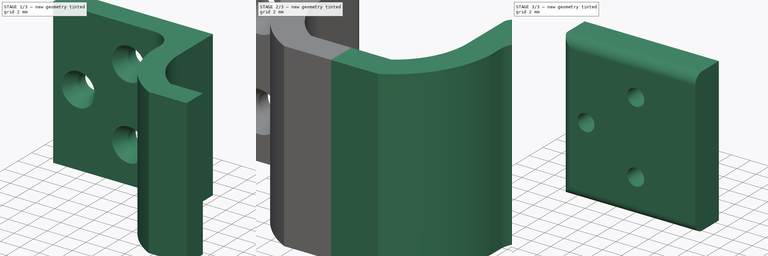
[diagram: build sequence overview — one tinted view per stage of 3, left to right]
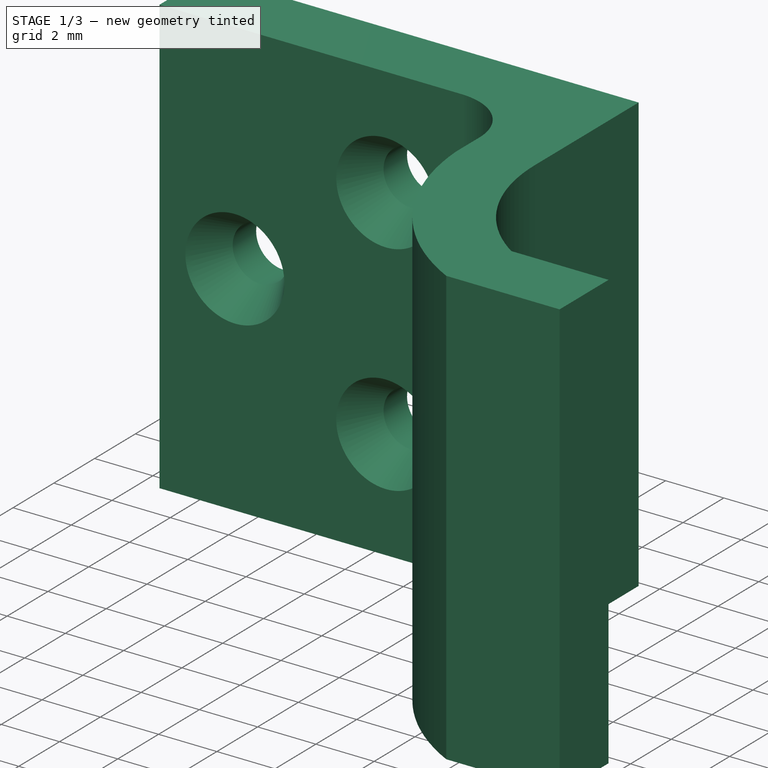
[diagram: stage 1 of 3 — iso view after this stage's code; geometry added in this stage tinted green]
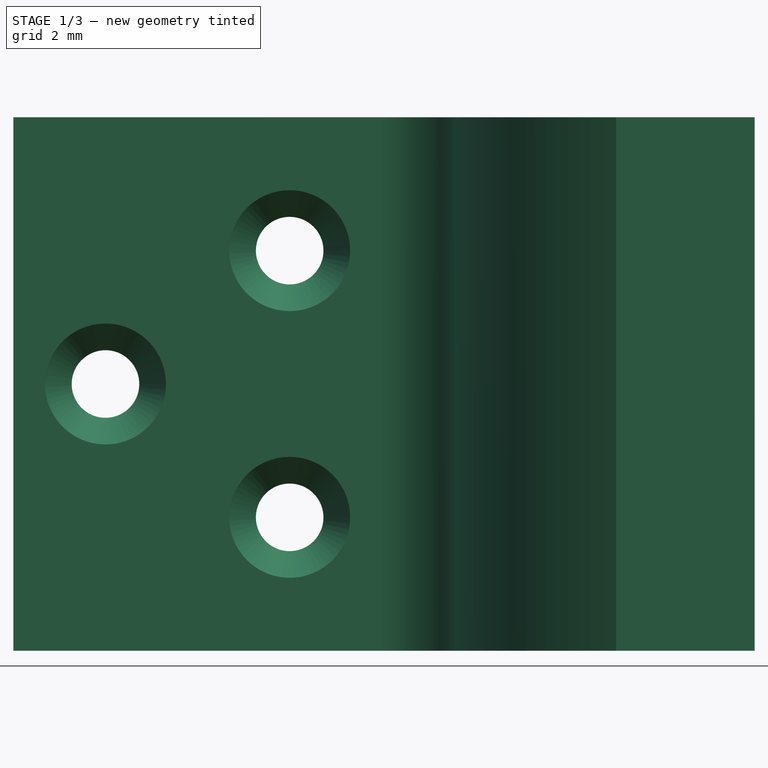
[diagram: stage 1 of 3 — front view after this stage's code; geometry added in this stage tinted green]
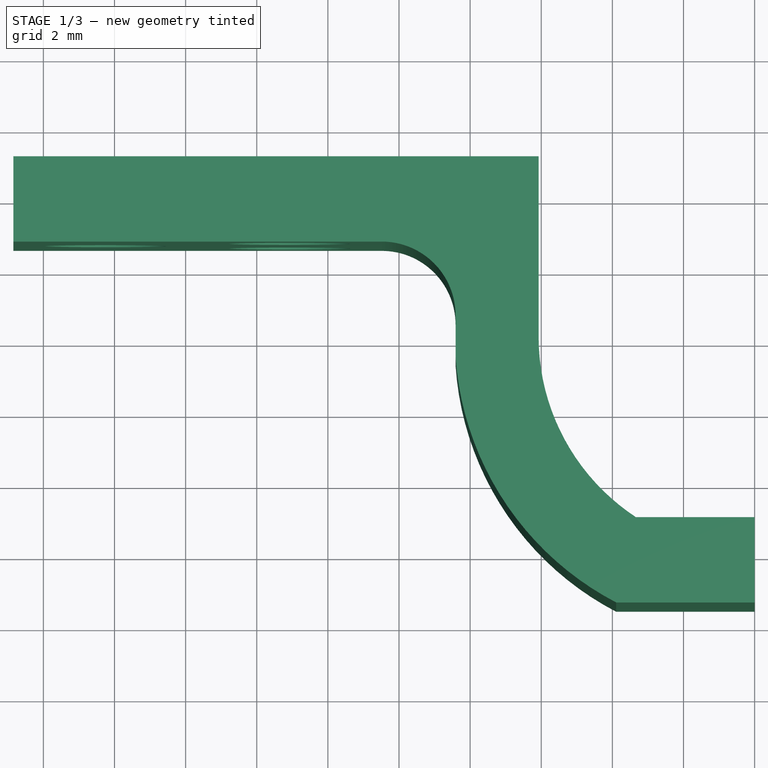
[diagram: stage 1 of 3 — top view after this stage's code; geometry added in this stage tinted green]
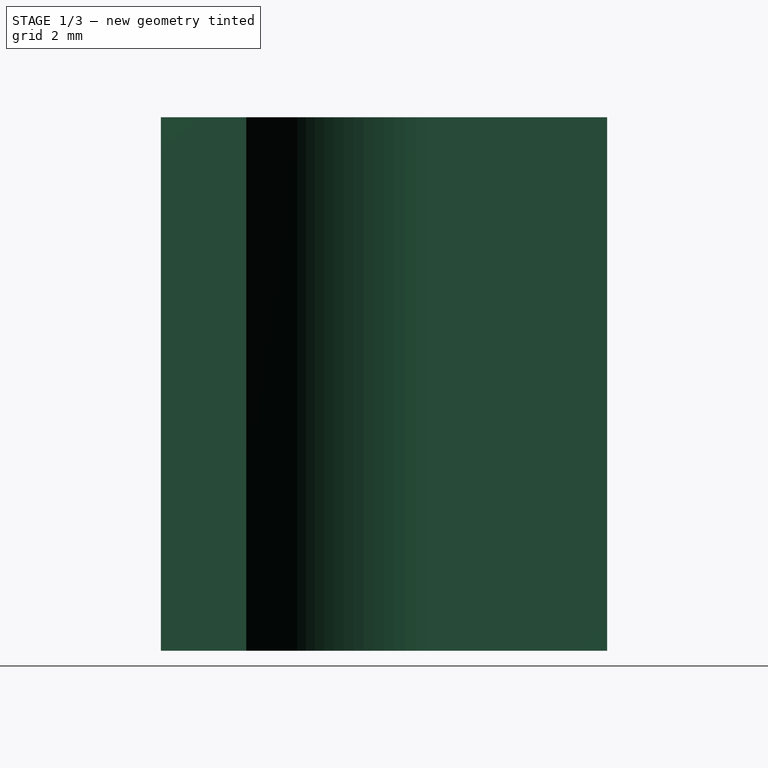
[diagram: stage 1 of 3 — right view after this stage's code; geometry added in this stage tinted green]
FCSTD DOCUMENT  (FreeCAD 1.0R39319 (Git))
Label: paolo_n20_bracket01
License: All rights reserved
LicenseURL: http://en.wikipedia.org/wiki/All_rights_reserved
objects: Sketcher::SketchObject×4, PartDesign::Pad×3, PartDesign::Body×3, PartDesign::Fillet×2, PartDesign::SubShapeBinder×2, PartDesign::Pocket×1, PartDesign::Chamfer×1, PartDesign::Mirrored×1, App::Part×1
note: 36 computed .brp shape members not serialized (recipe doc carries the construction recipe); baked Part::Feature solids carry a one-line shape summary decoded from their .brp

FEATURE [Sketcher::SketchObject] Sketch
  ArcFitTolerance = 1e-06
  AttachmentSupport = -> [XY_Plane001]
  FullyConstrained = false
  MakeInternals = false
  MapMode = 5
  sketch-geometry (19):
    g0: Circle [constr] CenterX=1.51607e-11 CenterY=-7.2447e-12 CenterZ=0 NormalX=0 NormalY=0 NormalZ=1 AngleXU=0 Radius=6.075
    g1: LineSegment [constr] StartX=-21.4264 StartY=5.075 StartZ=0 EndX=21.1454 EndY=5.075 EndZ=0
    g2: LineSegment [constr] StartX=-14.0475 StartY=-5.075 StartZ=0 EndX=21.1454 EndY=-5.075 EndZ=0
    g3: LineSegment StartX=-6.075 StartY=5.075 StartZ=0 EndX=-6.075 EndY=5.69509e-11 EndZ=0
    g4: LineSegment StartX=-6.075 StartY=5.075 StartZ=0 EndX=-20.8443 EndY=5.075 EndZ=0
    g5: ArcOfCircle CenterX=1.51607e-11 CenterY=-7.2447e-12 CenterZ=0 NormalX=0 NormalY=0 NormalZ=1 AngleXU=0 Radius=6.075 StartAngle=3.14159 EndAngle=4.13044
    g6: LineSegment StartX=-20.8443 StartY=2.675 StartZ=0 EndX=-10.4851 EndY=2.675 EndZ=0
    g7: LineSegment StartX=-8.40938 StartY=0.599322 StartZ=0 EndX=-8.40938 EndY=-0.557373 EndZ=0
    g8: LineSegment StartX=-3.89265 StartY=-7.475 StartZ=0 EndX=0 EndY=-7.475 EndZ=0
    g9: LineSegment StartX=-3.33916 StartY=-5.075 StartZ=0 EndX=0 EndY=-5.075 EndZ=0
    g10: LineSegment StartX=0 StartY=-5.075 StartZ=0 EndX=0 EndY=-7.475 EndZ=0
    g11: LineSegment [constr] StartX=-14.0475 StartY=-5.075 StartZ=0 EndX=-14.0475 EndY=-7.475 EndZ=0
    g12: LineSegment [constr] StartX=-21.4264 StartY=5.075 StartZ=0 EndX=-21.4264 EndY=2.675 EndZ=0
    g13: LineSegment [constr] StartX=-8.40938 StartY=7.05861 StartZ=0 EndX=-6.075 EndY=7.05861 EndZ=0
    g14: LineSegment StartX=-20.8443 StartY=5.075 StartZ=0 EndX=-20.8443 EndY=2.675 EndZ=0
    g15: ArcOfCircle CenterX=1.51607e-11 CenterY=-7.2447e-12 CenterZ=0 NormalX=0 NormalY=0 NormalZ=1 AngleXU=0 Radius=8.42783 StartAngle=3.20778 EndAngle=4.23227
    g16: ArcOfCircle CenterX=-10.4851 CenterY=0.599322 CenterZ=0 NormalX=0 NormalY=0 NormalZ=1 AngleXU=0 Radius=2.07568 StartAngle=3.3011e-12 EndAngle=1.5708
    g17: GeomPoint [constr] X=-8.40938 Y=2.675 Z=0
    g18: LineSegment [constr] StartX=-8.40938 StartY=-0.557373 StartZ=0 EndX=-6.075 EndY=5.69512e-11 EndZ=0
  constraints (47):
    c: Coincident(g0,g-1)
    c: Diameter(g0) = 12.15
    c: Horizontal(g1)
    c: Horizontal(g2)
    c: Symmetric(g1,g2,g-1)
    c: DistanceY(g2,g1) = 10.15
    c: PointOnObject(g3,g1)
    c: Tangent(g3,g0) = -1.5708
    c: Vertical(g3)
    c: Coincident(g4,g3)
    c: PointOnObject(g4,g1)
    c: Coincident(g5,g0)
    c: Coincident(g5,g3)
    c: PointOnObject(g5,g2)
    c: Horizontal(g6)
    c: Vertical(g7)
    c: Horizontal(g8)
    c: Coincident(g9,g5)
    c: PointOnObject(g9,g2)
    c: PointOnObject(g9,g-2)
    c: Coincident(g10,g9)
    c: Coincident(g10,g8)
    c: PointOnObject(g8,g-2)
    c: Coincident(g11,g2)
    c: Vertical(g11)
    c: Horizontal(g11,g8)
    c: Coincident(g12,g1)
    c: Vertical(g12)
    c: Horizontal(g12,g6)
    c: Equal(g12,g11)
    c: Horizontal(g13)
    c: Vertical(g3,g13)
    c: Vertical(g13,g7)
    c: Coincident(g14,g4)
    c: Coincident(g14,g6)
    c: Vertical(g14)
    c: Coincident(g15,g0)
    c: Coincident(g15,g7)
    c: Coincident(g15,g8)
    c: DistanceY(g12,g12) = 2.4
    c: PointOnObject(g17,g6)
    c: PointOnObject(g17,g7)
    c: Tangent(g6,g16) = 1.5708
    c: Tangent(g7,g16) = 1.5708
    c: Coincident(g18,g7)
    c: Coincident(g18,g3)
    c: Equal(g18,g11)
FEATURE [PartDesign::Pad] Pad
  Direction = (0,0,1)
  Length = 15
  Length2 = 10
  Midplane = true
  Profile = -> Sketch
  ReferenceAxis = -> Sketch [N_Axis]
  Suppressed = false
  Type = 0
FEATURE [Sketcher::SketchObject] Sketch001
  ArcFitTolerance = 1e-06
  AttachmentSupport = -> [Pad]
  ExternalGeometry = -> [Pad]
  FullyConstrained = false
  MakeInternals = false
  MapMode = 5
  Placement = pos=(0,2.675,0) rot=(1,0,0;1.5708rad)
  sketch-geometry (14):
    g0: Circle [constr] CenterX=-13.0749 CenterY=3.75 CenterZ=0 NormalX=0 NormalY=0 NormalZ=1 AngleXU=0 Radius=1.875
    g1: Circle [constr] CenterX=-13.0749 CenterY=-3.75 CenterZ=0 NormalX=0 NormalY=0 NormalZ=1 AngleXU=0 Radius=1.875
    g2: Circle [constr] CenterX=-18.2545 CenterY=0 CenterZ=0 NormalX=0 NormalY=0 NormalZ=1 AngleXU=0 Radius=1.875
    g3: LineSegment [constr] StartX=-24.5186 StartY=7.5 StartZ=0 EndX=-24.5186 EndY=3.75 EndZ=0
    g4: LineSegment [constr] StartX=-24.5186 StartY=3.75 StartZ=0 EndX=-24.5186 EndY=0 EndZ=0
    g5: LineSegment [constr] StartX=-24.5186 StartY=0 StartZ=0 EndX=-24.5186 EndY=-3.75 EndZ=0
    g6: LineSegment [constr] StartX=-24.5186 StartY=-3.75 StartZ=0 EndX=-24.5186 EndY=-7.5 EndZ=0
    g7: LineSegment [constr] StartX=-20.8443 StartY=10.0965 StartZ=0 EndX=-18.2545 EndY=10.0965 EndZ=0
    g8: LineSegment [constr] StartX=-18.2545 StartY=10.0965 StartZ=0 EndX=-15.6647 EndY=10.0965 EndZ=0
    g9: LineSegment [constr] StartX=-15.6647 StartY=10.0965 StartZ=0 EndX=-13.0749 EndY=10.0965 EndZ=0
    g10: LineSegment [constr] StartX=-13.0749 StartY=10.0965 StartZ=0 EndX=-10.4851 EndY=10.0965 EndZ=0
    g11: Circle CenterX=-13.0749 CenterY=3.75 CenterZ=0 NormalX=0 NormalY=0 NormalZ=1 AngleXU=0 Radius=0.95
    g12: Circle CenterX=-18.2545 CenterY=0 CenterZ=0 NormalX=0 NormalY=0 NormalZ=1 AngleXU=0 Radius=0.95
    g13: Circle CenterX=-13.0749 CenterY=-3.75 CenterZ=0 NormalX=0 NormalY=0 NormalZ=1 AngleXU=0 Radius=0.95
  constraints (42):
    c: Equal(g0,g1)
    c: Symmetric(g0,g1,g-1)
    c: PointOnObject(g2,g-1)
    c: Equal(g1,g2)
    c: Diameter(g0) = 3.75
    c: Vertical(g3)
    c: Coincident(g4,g3)
    c: PointOnObject(g4,g-1)
    c: Vertical(g4)
    c: Coincident(g5,g4)
    c: Vertical(g5)
    c: Coincident(g6,g5)
    c: Vertical(g6)
    c: Horizontal(g3,g-3)
    c: Horizontal(g6,g-4)
    c: Equal(g3,g4)
    c: Equal(g4,g5)
    c: Horizontal(g0,g3)
    c: Horizontal(g7)
    c: Coincident(g8,g7)
    c: Horizontal(g8)
    c: Coincident(g9,g8)
    c: Coincident(g10,g9)
    c: Horizontal(g10)
    c: Horizontal(g9)
    c: Vertical(g10,g-3)
    c: Vertical(g7,g-3)
    c: Equal(g7,g8)
    c: Equal(g8,g9)
    c: Equal(g9,g10)
    c: Vertical(g7,g2)
    c: Vertical(g9,g0)
    c: Coincident(g11,g0)
    c: Coincident(g12,g2)
    c: Coincident(g13,g1)
    c: Equal(g11,g12)
    c: Equal(g12,g13)
    c: Diameter(g13) = 1.9
    c: Distance(g7,g8) = 2.5898
    c: Distance(g8,g9) = 2.5898
    c: Distance(g7,g9) = 5.17961
    c: Distance(g3,g5) = 7.5
FEATURE [PartDesign::Pocket] Pocket
  BaseFeature = -> Pad
  Direction = (0,1,-2e-16)
  Length = 5
  Length2 = 5
  Profile = -> Sketch001
  ReferenceAxis = -> Sketch001 [N_Axis]
  Suppressed = false
  Type = 1
FEATURE [PartDesign::Chamfer] Chamfer
  Angle = 45
  Base = -> Pocket [Edge32,Edge30,Edge34]
  BaseFeature = -> Pocket
  ChamferType = 1
  FlipDirection = false
  Size = 1.25
  Size2 = 0.75
  SupportTransform = false
  Suppressed = false
  UseAllEdges = false
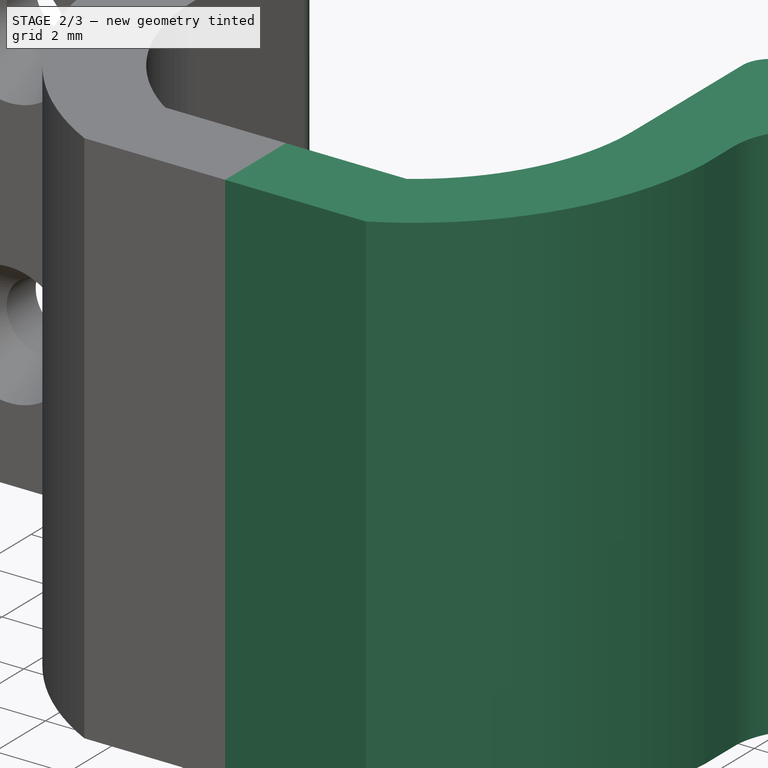
[diagram: stage 2 of 3 — iso view after this stage's code; geometry added in this stage tinted green]
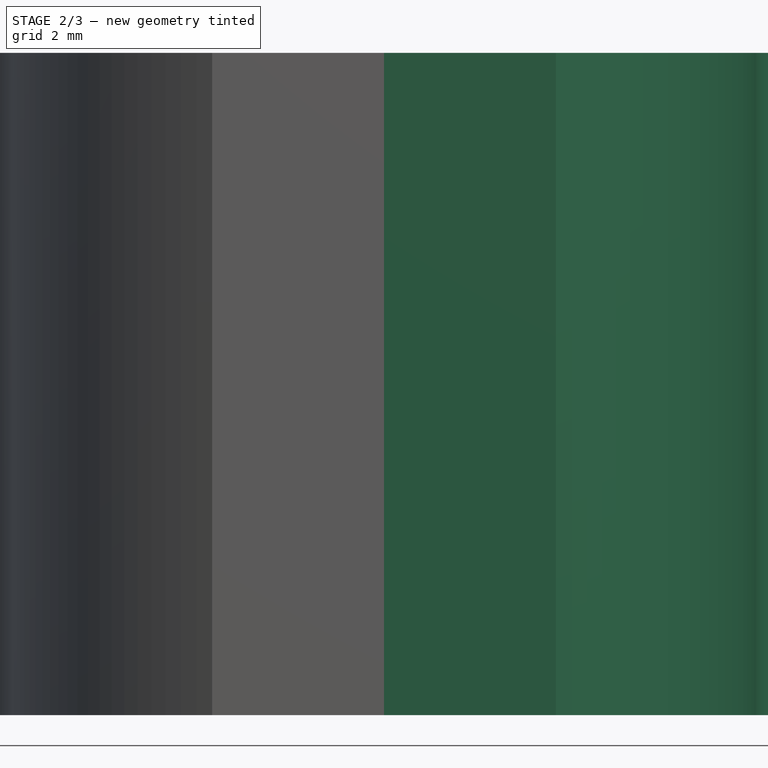
[diagram: stage 2 of 3 — front view after this stage's code; geometry added in this stage tinted green]
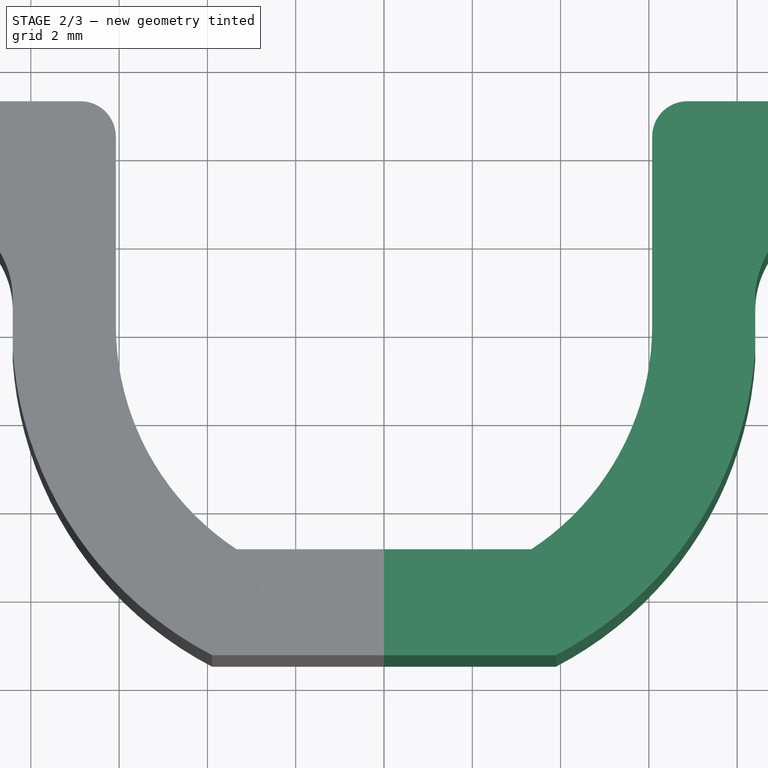
[diagram: stage 2 of 3 — top view after this stage's code; geometry added in this stage tinted green]
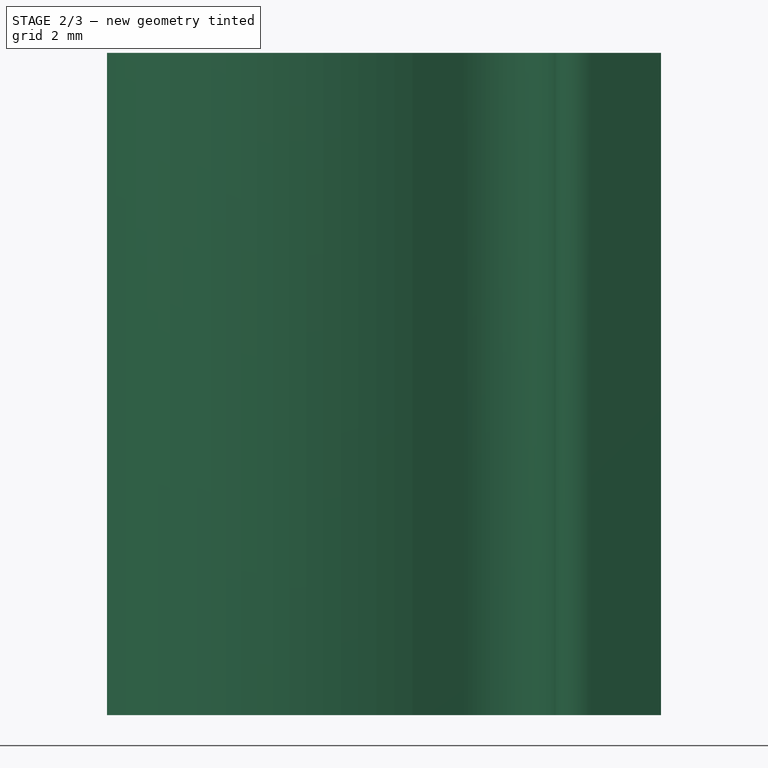
[diagram: stage 2 of 3 — right view after this stage's code; geometry added in this stage tinted green]
FEATURE [PartDesign::Fillet] Fillet
  Base = -> Chamfer [Edge13,Edge6]
  BaseFeature = -> Chamfer
  Radius = 0.8
  SupportTransform = false
  Suppressed = false
  UseAllEdges = false
FEATURE [PartDesign::Mirrored] Mirrored
  BaseFeature = -> Fillet
  MirrorPlane = -> Fillet [Face15]
  Originals = -> [Fillet]
  Suppressed = false
  TransformMode = 1
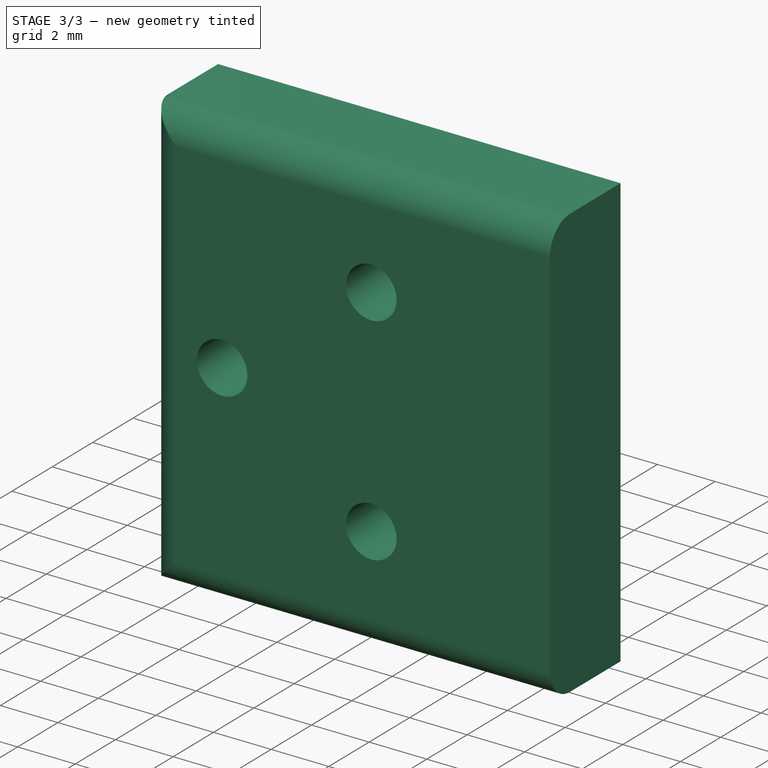
[diagram: stage 3 of 3 — iso view after this stage's code; geometry added in this stage tinted green]
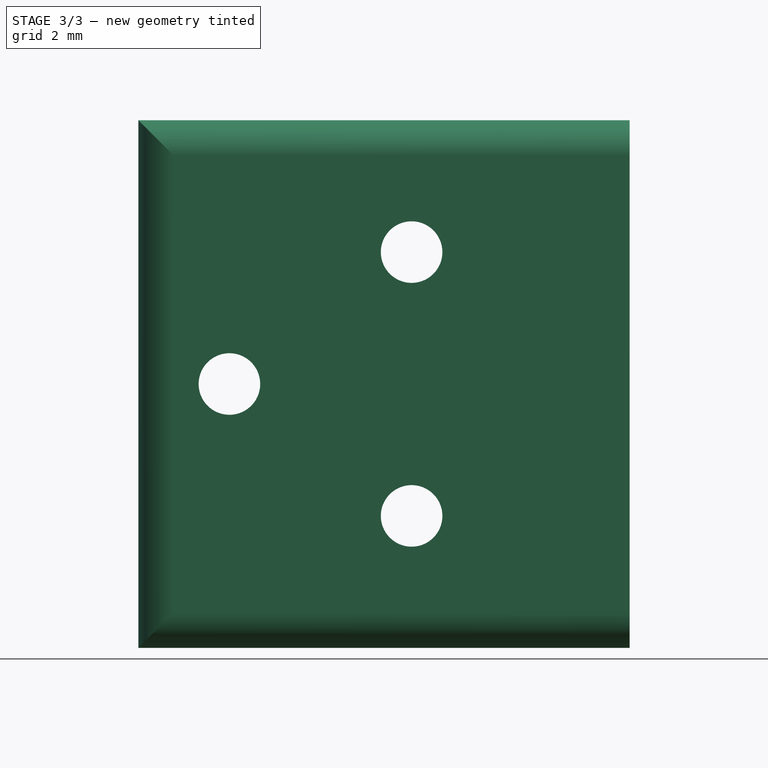
[diagram: stage 3 of 3 — front view after this stage's code; geometry added in this stage tinted green]
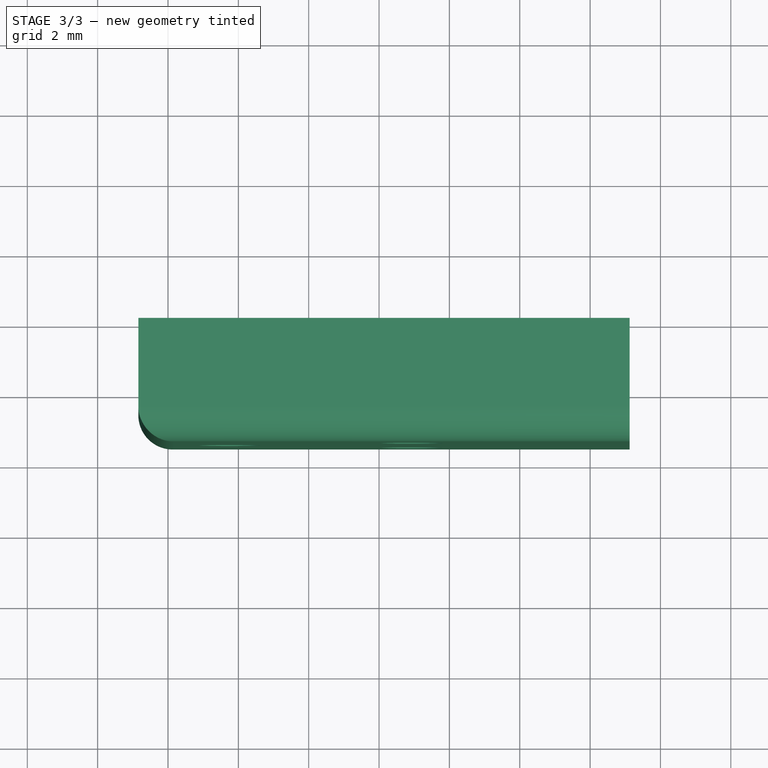
[diagram: stage 3 of 3 — top view after this stage's code; geometry added in this stage tinted green]
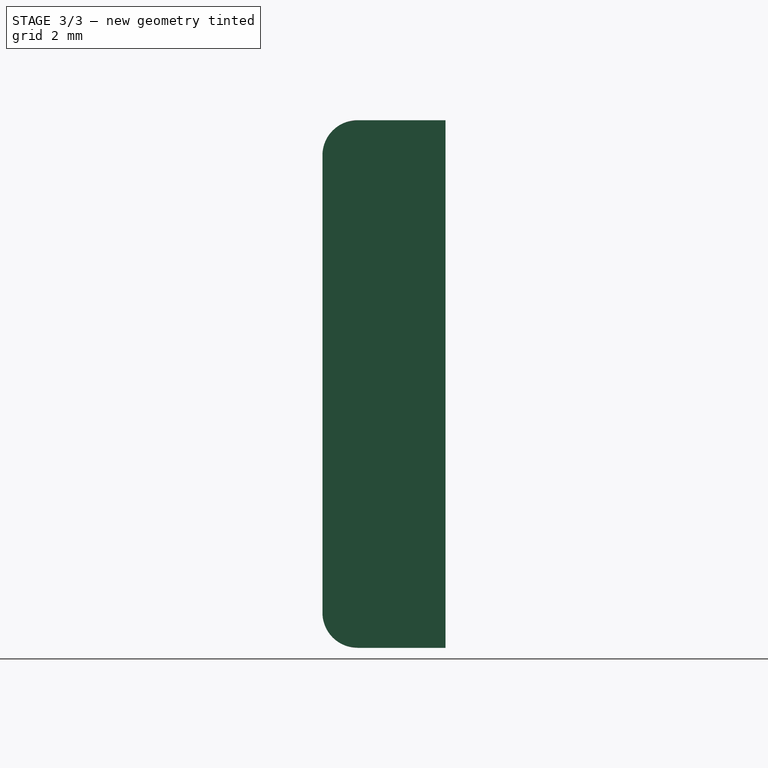
[diagram: stage 3 of 3 — right view after this stage's code; geometry added in this stage tinted green]
FEATURE [PartDesign::Body] Body
  AllowCompound = false
  Group = -> [Sketch,Pad,Sketch001,Pocket,Chamfer,Fillet,Mirrored]
  Origin = -> Origin001
  Tip = -> Mirrored
FEATURE [PartDesign::SubShapeBinder] Binder
  BindCopyOnChange = 0
  BindMode = 0
  ClaimChildren = false
  Context = -> Body001 [Binder.]
  Fuse = false
  MakeFace = true
  OffsetFill = false
  OffsetIntersection = false
  OffsetJoinType = 0
  OffsetOpenResult = false
  PartialLoad = false
  Relative = true
  Support = -> [Part[Body.Mirrored.Face1]]
  _Version = 2
FEATURE [Sketcher::SketchObject] Sketch002  label="fori"
  ArcFitTolerance = 1e-06
  AttachmentSupport = -> [XZ_Plane002]
  ExternalGeometry = -> [Binder]
  FullyConstrained = true
  MakeInternals = false
  MapMode = 5
  Placement = pos=(0,0,0) rot=(1,0,0;1.5708rad)
  sketch-geometry (7):
    g0: Circle CenterX=-18.2545 CenterY=6e-16 CenterZ=0 NormalX=0 NormalY=0 NormalZ=1 AngleXU=0 Radius=0.875
    g1: Circle CenterX=-13.0749 CenterY=3.75 CenterZ=0 NormalX=0 NormalY=0 NormalZ=1 AngleXU=0 Radius=0.875
    g2: Circle CenterX=-13.0749 CenterY=-3.75 CenterZ=0 NormalX=0 NormalY=0 NormalZ=1 AngleXU=0 Radius=0.875
    g3: LineSegment StartX=-20.8443 StartY=7.5 StartZ=0 EndX=-20.8443 EndY=-7.5 EndZ=0
    g4: LineSegment StartX=-20.8443 StartY=-7.5 StartZ=0 EndX=-6.875 EndY=-7.5 EndZ=0
    g5: LineSegment StartX=-6.875 StartY=7.5 StartZ=0 EndX=-20.8443 EndY=7.5 EndZ=0
    g6: LineSegment StartX=-6.875 StartY=7.5 StartZ=0 EndX=-6.875 EndY=-7.5 EndZ=0
  constraints (15):
    c: Coincident(g0,g-3)
    c: Coincident(g1,g-4)
    c: Coincident(g2,g-5)
    c: Equal(g1,g0)
    c: Equal(g0,g2)
    c: Coincident(g3,g4)
    c: Coincident(g5,g3)
    c: Coincident(g3,g-9)
    c: Coincident(g-7,g3)
    c: Equal(g-4,g1)
    c: Coincident(g5,g-9)
    c: Coincident(g4,g-8)
    c: Coincident(g6,g5)
    c: Coincident(g6,g4)
    c: Diameter(g2) = 1.75
FEATURE [PartDesign::SubShapeBinder] Binder001
  BindCopyOnChange = 0
  BindMode = 0
  ClaimChildren = false
  Context = -> Part [Body002.Binder001.]
  Fuse = false
  MakeFace = true
  OffsetFill = false
  OffsetIntersection = false
  OffsetJoinType = 0
  OffsetOpenResult = false
  PartialLoad = false
  Relative = true
  Support = -> [Body[Mirrored.]]
  _Version = 2
FEATURE [Sketcher::SketchObject] Sketch003
  ArcFitTolerance = 1e-06
  AttachmentSupport = -> [Binder001]
  ExternalGeometry = -> [Binder001]
  FullyConstrained = true
  MakeInternals = false
  MapMode = 5
  Placement = pos=(-6.28726e-11,-5.075,0) rot=(0,0.707107,0.707107;3.14159rad)
  sketch-geometry (4):
    g0: LineSegment StartX=-3.33916 StartY=7.5 StartZ=0 EndX=-3.33916 EndY=-7.5 EndZ=0
    g1: LineSegment StartX=-3.33916 StartY=-7.5 StartZ=0 EndX=3.33916 EndY=-7.5 EndZ=0
    g2: LineSegment StartX=3.33916 StartY=-7.5 StartZ=0 EndX=3.33916 EndY=7.5 EndZ=0
    g3: LineSegment StartX=3.33916 StartY=7.5 StartZ=0 EndX=-3.33916 EndY=7.5 EndZ=0
  constraints (9):
    c: Coincident(g0,g1)
    c: Coincident(g1,g2)
    c: Coincident(g2,g3)
    c: Coincident(g3,g0)
    c: Vertical(g2)
    c: Horizontal(g1)
    c: Symmetric(g2,g0,g-2)
    c: Symmetric(g0,g0,g-1)
    c: Coincident(g0,g-3)
FEATURE [PartDesign::Pad] Pad001
  Direction = (1.23887e-11,1,-2e-16)
  Length = 0.45
  Length2 = 10
  Profile = -> Sketch003
  ReferenceAxis = -> Sketch003 [N_Axis]
  Suppressed = false
  Type = 0
FEATURE [PartDesign::Body] Body002  label="zeppa"
  AllowCompound = false
  Group = -> [Binder001,Sketch003,Pad001]
  Origin = -> Origin003
  Tip = -> Pad001
FEATURE [App::Part] Part
  Group = -> [Body,Body002]
  Origin = -> Origin
FEATURE [PartDesign::Pad] Pad002
  Direction = (0,-1,2e-16)
  Length = 3.5
  Length2 = 10
  Placement = pos=(0,0,0) rot=(1,0,0;1.5708rad)
  Profile = -> Sketch002
  ReferenceAxis = -> Sketch002 [N_Axis]
  Suppressed = false
  Type = 0
FEATURE [PartDesign::Fillet] Fillet001
  Base = -> Pad002 [Edge12,Edge4,Edge7]
  BaseFeature = -> Pad002
  Placement = pos=(0,0,0) rot=(1,0,0;1.5708rad)
  Radius = 1
  SupportTransform = false
  Suppressed = false
  UseAllEdges = false
FEATURE [PartDesign::Body] Body001
  AllowCompound = false
  Group = -> [Binder,Sketch002,Pad002,Fillet001]
  Origin = -> Origin002
  Tip = -> Fillet001
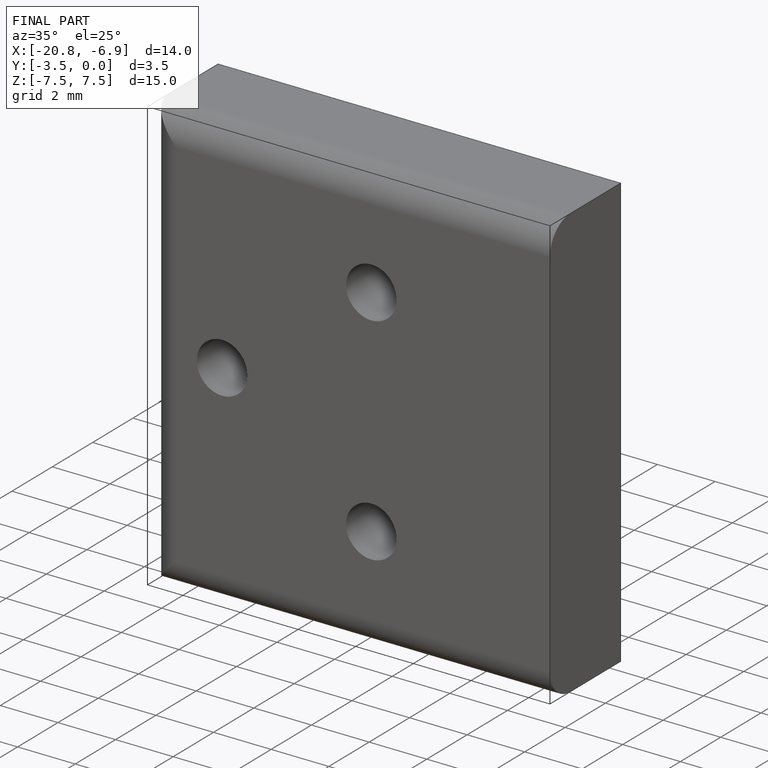
[diagram: finished part — iso view with bounding-box wireframe]
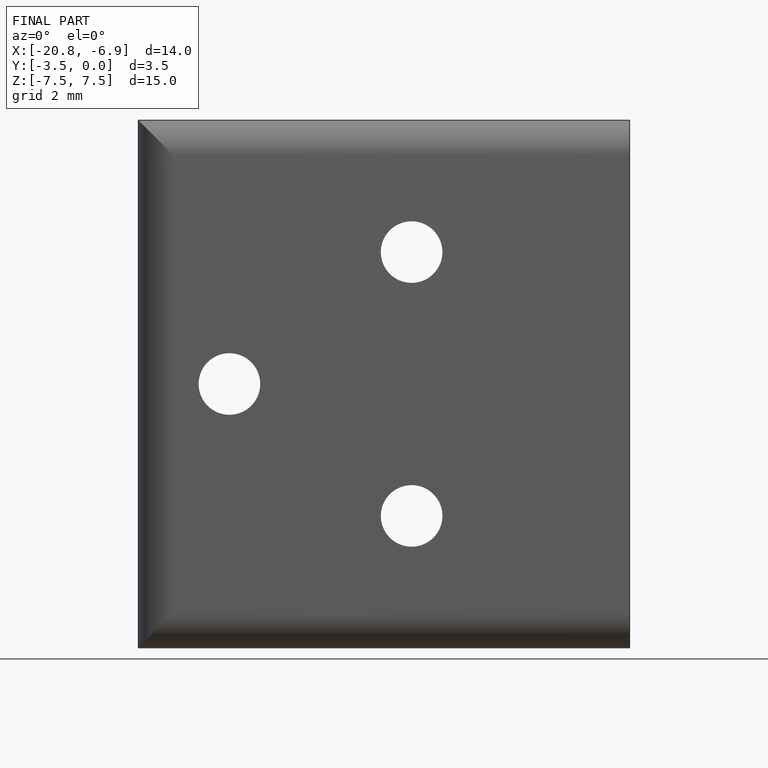
[diagram: finished part — front view with bounding-box wireframe]
